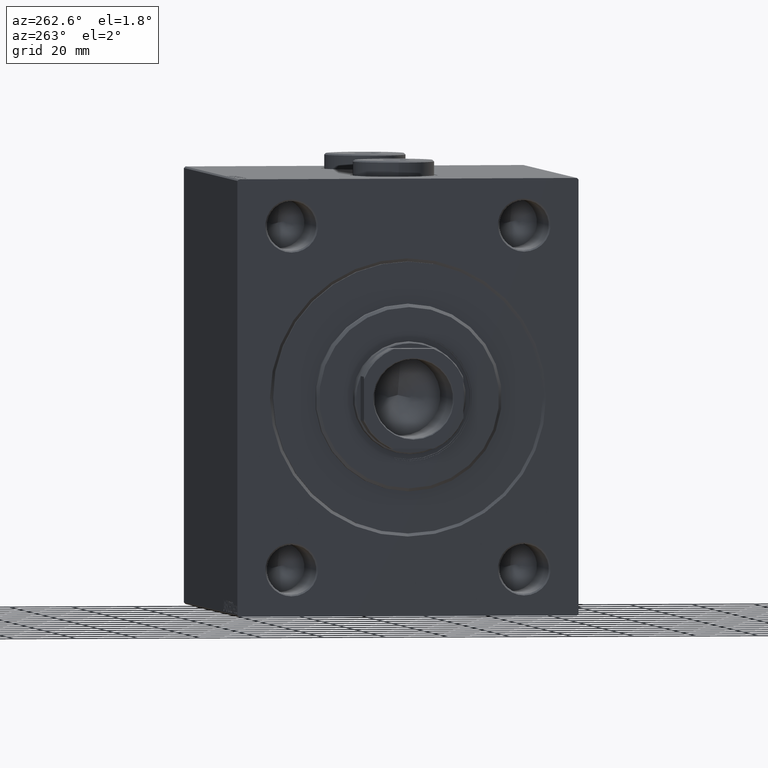
[diagram: clean part render]
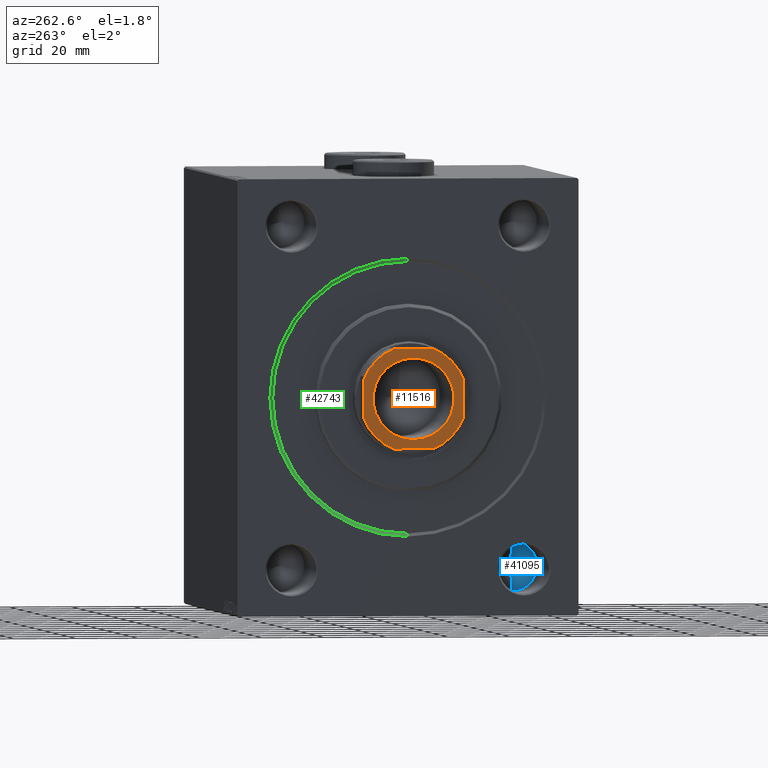
[diagram: same view with three faces highlighted in distinct colors, each labeled with its STEP entity id]
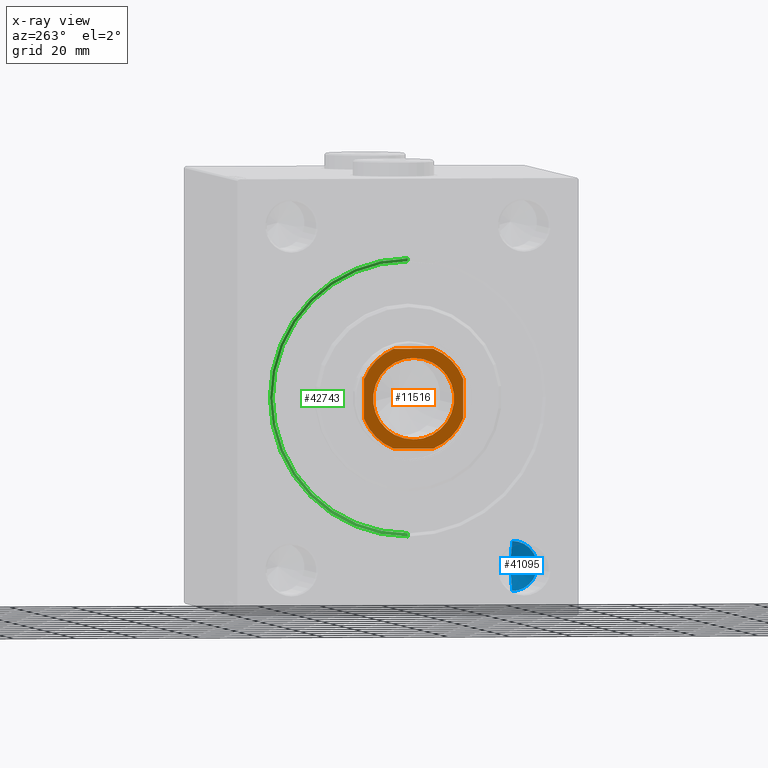
[diagram: x-ray of the same camera — body ghosted, the three highlighted faces saturated]
A machine part, auxiliary view with three faces highlighted in distinct colors.
The next image is the same camera in x-ray (body ghosted, the three faces saturated) — at least one of them is partly hidden behind the body in this view.
Their STEP definitions:

[orange] entity #11516 — the highlighted planar face has unit normal (-1, 0, 0).
#1522 = EDGE_CURVE ( 'NONE', #21636, #25241, #10453, .T. ) ;
#1797 = CARTESIAN_POINT ( 'NONE',  ( 16.00000000000000000, 6.311893535223812357, 126.0000000000000000 ) ) ;
#2664 = LINE ( 'NONE', #5918, #24057 ) ;
#3004 = AXIS2_PLACEMENT_3D ( 'NONE', #28829, #24681, #3898 ) ;
#3524 = EDGE_CURVE ( 'NONE', #15616, #40701, #21335, .T. ) ;
#3802 = ORIENTED_EDGE ( 'NONE', *, *, #1522, .T. ) ;
#3898 = DIRECTION ( 'NONE',  ( 1.000000000000000000, 0.000000000000000000, 0.000000000000000000 ) ) ;
#5735 = EDGE_CURVE ( 'NONE', #45122, #36182, #9204, .T. ) ;
#5766 = DIRECTION ( 'NONE',  ( 1.000000000000000000, 0.000000000000000000, 0.000000000000000000 ) ) ;
#5918 = CARTESIAN_POINT ( 'NONE',  ( 16.00000000000000000, 16.00000000000000000, 126.0000000000000000 ) ) ;
#6579 = DIRECTION ( 'NONE',  ( -0.000000000000000000, 0.000000000000000000, 1.000000000000000000 ) ) ;
#6672 = ORIENTED_EDGE ( 'NONE', *, *, #43998, .T. ) ;
#6988 = CARTESIAN_POINT ( 'NONE',  ( -15.99999999999999289, -16.00000000000000000, 126.0000000000000000 ) ) ;
#6997 = VERTEX_POINT ( 'NONE', #41136 ) ;
#7292 = ORIENTED_EDGE ( 'NONE', *, *, #8549, .T. ) ;
#8120 = AXIS2_PLACEMENT_3D ( 'NONE', #32468, #11657, #39840 ) ;
#8549 = EDGE_CURVE ( 'NONE', #40701, #15616, #25764, .T. ) ;
#9204 = LINE ( 'NONE', #19360, #33960 ) ;
#9492 = EDGE_CURVE ( 'NONE', #6997, #21636, #31028, .T. ) ;
#9810 = DIRECTION ( 'NONE',  ( 0.000000000000000000, -0.000000000000000000, -1.000000000000000000 ) ) ;
#9904 = EDGE_CURVE ( 'NONE', #28971, #45122, #16230, .T. ) ;
#10063 = CARTESIAN_POINT ( 'NONE',  ( 0.000000000000000000, 0.000000000000000000, 126.0000000000000000 ) ) ;
#10109 = ORIENTED_EDGE ( 'NONE', *, *, #5735, .T. ) ;
#10453 = LINE ( 'NONE', #6988, #22762 ) ;
#11276 = DIRECTION ( 'NONE',  ( 2.168404344971008868E-16, -1.000000000000000000, 0.000000000000000000 ) ) ;
#11516 = ADVANCED_FACE ( 'NONE', ( #42682, #38996 ), #28381, .T. ) ;
#11657 = DIRECTION ( 'NONE',  ( -0.000000000000000000, 0.000000000000000000, 1.000000000000000000 ) ) ;
#12230 = ORIENTED_EDGE ( 'NONE', *, *, #30624, .T. ) ;
#12466 = DIRECTION ( 'NONE',  ( -0.000000000000000000, 0.000000000000000000, 1.000000000000000000 ) ) ;
#13946 = AXIS2_PLACEMENT_3D ( 'NONE', #10063, #35226, #13964 ) ;
#13964 = DIRECTION ( 'NONE',  ( 1.000000000000000000, 0.000000000000000000, 0.000000000000000000 ) ) ;
#14882 = ORIENTED_EDGE ( 'NONE', *, *, #9492, .T. ) ;
#14890 = VECTOR ( 'NONE', #11276, 1000.000000000000000 ) ;
#15616 = VERTEX_POINT ( 'NONE', #42279 ) ;
#16230 = CIRCLE ( 'NONE', #8120, 17.20000000000000284 ) ;
#18192 = CARTESIAN_POINT ( 'NONE',  ( -16.00000000000000000, 16.00000000000000000, 126.0000000000000000 ) ) ;
#18240 = CARTESIAN_POINT ( 'NONE',  ( 6.311893535223840779, -16.00000000000000000, 126.0000000000000000 ) ) ;
#19360 = CARTESIAN_POINT ( 'NONE',  ( -16.00000000000000000, 16.00000000000000000, 126.0000000000000000 ) ) ;
#19531 = CARTESIAN_POINT ( 'NONE',  ( 0.000000000000000000, 0.000000000000000000, 126.0000000000000000 ) ) ;
#20130 = VERTEX_POINT ( 'NONE', #23274 ) ;
#20867 = CIRCLE ( 'NONE', #31961, 17.19999999999998153 ) ;
#21335 = CIRCLE ( 'NONE', #13946, 13.05000000000003446 ) ;
#21636 = VERTEX_POINT ( 'NONE', #30974 ) ;
#22762 = VECTOR ( 'NONE', #25434, 1000.000000000000000 ) ;
#23193 = EDGE_LOOP ( 'NONE', ( #6672, #43828, #10109, #29090, #12230, #14882, #3802, #26202 ) ) ;
#23274 = CARTESIAN_POINT ( 'NONE',  ( 16.00000000000000355, -6.311893535223839891, 126.0000000000000000 ) ) ;
#23458 = DIRECTION ( 'NONE',  ( -1.084202172485504434E-16, 1.000000000000000000, -0.000000000000000000 ) ) ;
#24057 = VECTOR ( 'NONE', #23458, 1000.000000000000000 ) ;
#24681 = DIRECTION ( 'NONE',  ( -0.000000000000000000, 0.000000000000000000, 1.000000000000000000 ) ) ;
#24891 = LINE ( 'NONE', #18192, #14890 ) ;
#25241 = VERTEX_POINT ( 'NONE', #18240 ) ;
#25322 = CARTESIAN_POINT ( 'NONE',  ( -6.311893535223754625, 16.00000000000000000, 126.0000000000000000 ) ) ;
#25434 = DIRECTION ( 'NONE',  ( 1.000000000000000000, 0.000000000000000000, 0.000000000000000000 ) ) ;
#25764 = CIRCLE ( 'NONE', #27284, 13.05000000000003446 ) ;
#26202 = ORIENTED_EDGE ( 'NONE', *, *, #28421, .T. ) ;
#27284 = AXIS2_PLACEMENT_3D ( 'NONE', #27356, #9810, #31066 ) ;
#27356 = CARTESIAN_POINT ( 'NONE',  ( 0.000000000000000000, 0.000000000000000000, 126.0000000000000000 ) ) ;
#28381 = PLANE ( 'NONE',  #3004 ) ;
#28421 = EDGE_CURVE ( 'NONE', #25241, #20130, #30394, .T. ) ;
#28829 = CARTESIAN_POINT ( 'NONE',  ( 0.000000000000000000, 0.000000000000000000, 126.0000000000000000 ) ) ;
#28971 = VERTEX_POINT ( 'NONE', #1797 ) ;
#29027 = CARTESIAN_POINT ( 'NONE',  ( -15.99999999999999645, 6.311893535223759955, 126.0000000000000000 ) ) ;
#29090 = ORIENTED_EDGE ( 'NONE', *, *, #32298, .T. ) ;
#29620 = AXIS2_PLACEMENT_3D ( 'NONE', #19531, #36626, #36398 ) ;
#30394 = CIRCLE ( 'NONE', #29620, 17.20000000000001350 ) ;
#30624 = EDGE_CURVE ( 'NONE', #34551, #6997, #24891, .T. ) ;
#30974 = CARTESIAN_POINT ( 'NONE',  ( -6.311893535223810581, -16.00000000000000000, 126.0000000000000000 ) ) ;
#31028 = CIRCLE ( 'NONE', #32457, 17.20000000000000284 ) ;
#31066 = DIRECTION ( 'NONE',  ( 1.000000000000000000, 0.000000000000000000, 0.000000000000000000 ) ) ;
#31961 = AXIS2_PLACEMENT_3D ( 'NONE', #42128, #6579, #35662 ) ;
#32298 = EDGE_CURVE ( 'NONE', #36182, #34551, #20867, .T. ) ;
#32457 = AXIS2_PLACEMENT_3D ( 'NONE', #44111, #12466, #5766 ) ;
#32468 = CARTESIAN_POINT ( 'NONE',  ( 0.000000000000000000, 0.000000000000000000, 126.0000000000000000 ) ) ;
#32599 = CARTESIAN_POINT ( 'NONE',  ( -13.05000000000003446, 1.598164072887299915E-15, 126.0000000000000000 ) ) ;
#33960 = VECTOR ( 'NONE', #44536, 1000.000000000000000 ) ;
#34551 = VERTEX_POINT ( 'NONE', #29027 ) ;
#35226 = DIRECTION ( 'NONE',  ( 0.000000000000000000, -0.000000000000000000, -1.000000000000000000 ) ) ;
#35662 = DIRECTION ( 'NONE',  ( 1.000000000000000000, 0.000000000000000000, 0.000000000000000000 ) ) ;
#35905 = EDGE_LOOP ( 'NONE', ( #37961, #7292 ) ) ;
#36182 = VERTEX_POINT ( 'NONE', #25322 ) ;
#36398 = DIRECTION ( 'NONE',  ( 1.000000000000000000, 0.000000000000000000, 0.000000000000000000 ) ) ;
#36626 = DIRECTION ( 'NONE',  ( -0.000000000000000000, 0.000000000000000000, 1.000000000000000000 ) ) ;
#37961 = ORIENTED_EDGE ( 'NONE', *, *, #3524, .T. ) ;
#38996 = FACE_OUTER_BOUND ( 'NONE', #23193, .T. ) ;
#39840 = DIRECTION ( 'NONE',  ( 1.000000000000000000, 0.000000000000000000, 0.000000000000000000 ) ) ;
#40701 = VERTEX_POINT ( 'NONE', #32599 ) ;
#41136 = CARTESIAN_POINT ( 'NONE',  ( -15.99999999999999645, -6.311893535223822127, 126.0000000000000000 ) ) ;
#42128 = CARTESIAN_POINT ( 'NONE',  ( 0.000000000000000000, 0.000000000000000000, 126.0000000000000000 ) ) ;
#42279 = CARTESIAN_POINT ( 'NONE',  ( 13.05000000000003446, 0.000000000000000000, 126.0000000000000000 ) ) ;
#42682 = FACE_BOUND ( 'NONE', #35905, .T. ) ;
#43828 = ORIENTED_EDGE ( 'NONE', *, *, #9904, .T. ) ;
#43998 = EDGE_CURVE ( 'NONE', #20130, #28971, #2664, .T. ) ;
#44111 = CARTESIAN_POINT ( 'NONE',  ( 0.000000000000000000, 0.000000000000000000, 126.0000000000000000 ) ) ;
#44284 = CARTESIAN_POINT ( 'NONE',  ( 6.311893535223808804, 16.00000000000000000, 126.0000000000000000 ) ) ;
#44536 = DIRECTION ( 'NONE',  ( -1.000000000000000000, -0.000000000000000000, -0.000000000000000000 ) ) ;
#45122 = VERTEX_POINT ( 'NONE', #44284 ) ;

[blue] entity #41095 — the highlighted conical surface has half-angle 59 deg.
#122 = LINE ( 'NONE', #41944, #5232 ) ;
#5232 = VECTOR ( 'NONE', #24391, 1000.000000000000000 ) ;
#6698 = CARTESIAN_POINT ( 'NONE',  ( 30.00000000000000000, -37.49999999999999289, -62.99999999999998579 ) ) ;
#6941 = CARTESIAN_POINT ( 'NONE',  ( 30.00000000000000000, -37.49999999999999289, -47.00000000000000000 ) ) ;
#7554 = EDGE_LOOP ( 'NONE', ( #43507, #22555, #12050 ) ) ;
#10284 = DIRECTION ( 'NONE',  ( 0.000000000000000000, 0.000000000000000000, 1.000000000000000000 ) ) ;
#10670 = EDGE_CURVE ( 'NONE', #30871, #22240, #122, .T. ) ;
#11058 = DIRECTION ( 'NONE',  ( -0.5150380749100550437, 1.049727191138617956E-16, -0.8571673007021117785 ) ) ;
#12050 = ORIENTED_EDGE ( 'NONE', *, *, #34667, .T. ) ;
#12426 = DIRECTION ( 'NONE',  ( 0.000000000000000000, 0.000000000000000000, 1.000000000000000000 ) ) ;
#13326 = CARTESIAN_POINT ( 'NONE',  ( 30.00000000000000000, -37.49999999999999289, -54.99999999999999289 ) ) ;
#15082 = CONICAL_SURFACE ( 'NONE', #23211, 7.999999999999992895, 1.029744258676653423 ) ;
#16749 = DIRECTION ( 'NONE',  ( -1.000000000000000000, -0.000000000000000000, -0.000000000000000000 ) ) ;
#18436 = EDGE_CURVE ( 'NONE', #30871, #40809, #31872, .T. ) ;
#22240 = VERTEX_POINT ( 'NONE', #6941 ) ;
#22555 = ORIENTED_EDGE ( 'NONE', *, *, #18436, .T. ) ;
#23211 = AXIS2_PLACEMENT_3D ( 'NONE', #13326, #34377, #12426 ) ;
#23462 = CARTESIAN_POINT ( 'NONE',  ( 30.00000000000000000, -37.49999999999999289, -54.99999999999999289 ) ) ;
#24391 = DIRECTION ( 'NONE',  ( -0.5150380749100550437, 0.000000000000000000, 0.8571673007021117785 ) ) ;
#27256 = CARTESIAN_POINT ( 'NONE',  ( 30.00000000000000000, -37.49999999999999289, -62.99999999999998579 ) ) ;
#30188 = VECTOR ( 'NONE', #11058, 1000.000000000000000 ) ;
#30871 = VERTEX_POINT ( 'NONE', #33679 ) ;
#31872 = LINE ( 'NONE', #6698, #30188 ) ;
#33679 = CARTESIAN_POINT ( 'NONE',  ( 34.80688495222048573, -37.50000000000000000, -54.99999999999999289 ) ) ;
#34377 = DIRECTION ( 'NONE',  ( -1.000000000000000000, -0.000000000000000000, -0.000000000000000000 ) ) ;
#34667 = EDGE_CURVE ( 'NONE', #40809, #22240, #38537, .T. ) ;
#35567 = AXIS2_PLACEMENT_3D ( 'NONE', #23462, #16749, #10284 ) ;
#38537 = CIRCLE ( 'NONE', #35567, 7.999999999999992895 ) ;
#40809 = VERTEX_POINT ( 'NONE', #27256 ) ;
#41095 = ADVANCED_FACE ( 'NONE', ( #44541 ), #15082, .F. ) ;
#41944 = CARTESIAN_POINT ( 'NONE',  ( 30.00000000000000000, -37.49999999999999289, -47.00000000000000000 ) ) ;
#43507 = ORIENTED_EDGE ( 'NONE', *, *, #10670, .F. ) ;
#44541 = FACE_OUTER_BOUND ( 'NONE', #7554, .T. ) ;

[green] entity #42743 — the highlighted conical surface has half-angle 45 deg.
#1428 = EDGE_CURVE ( 'NONE', #21777, #7170, #35387, .T. ) ;
#2101 = CARTESIAN_POINT ( 'NONE',  ( 1.000000000000028644, 0.000000000000000000, 0.000000000000000000 ) ) ;
#3081 = EDGE_LOOP ( 'NONE', ( #41164, #40645, #43809, #32271 ) ) ;
#3217 = DIRECTION ( 'NONE',  ( 0.000000000000000000, 0.000000000000000000, -1.000000000000000000 ) ) ;
#4071 = AXIS2_PLACEMENT_3D ( 'NONE', #37329, #16060, #23684 ) ;
#4695 = EDGE_CURVE ( 'NONE', #20515, #23980, #26795, .T. ) ;
#7170 = VERTEX_POINT ( 'NONE', #25161 ) ;
#9871 = CIRCLE ( 'NONE', #41574, 43.50000000000000000 ) ;
#12548 = VECTOR ( 'NONE', #40420, 1000.000000000000000 ) ;
#13670 = CONICAL_SURFACE ( 'NONE', #4071, 43.50000000000000000, 0.7853981633974415066 ) ;
#14674 = EDGE_CURVE ( 'NONE', #20515, #21777, #9871, .T. ) ;
#16060 = DIRECTION ( 'NONE',  ( -1.000000000000000000, 0.000000000000000000, 0.000000000000000000 ) ) ;
#17489 = EDGE_CURVE ( 'NONE', #7170, #23980, #22051, .T. ) ;
#20515 = VERTEX_POINT ( 'NONE', #33583 ) ;
#21777 = VERTEX_POINT ( 'NONE', #45722 ) ;
#22051 = CIRCLE ( 'NONE', #33115, 44.50000000000001421 ) ;
#23448 = FACE_OUTER_BOUND ( 'NONE', #3081, .T. ) ;
#23684 = DIRECTION ( 'NONE',  ( 0.000000000000000000, 0.000000000000000000, 1.000000000000000000 ) ) ;
#23980 = VERTEX_POINT ( 'NONE', #24274 ) ;
#24274 = CARTESIAN_POINT ( 'NONE',  ( 0.000000000000000000, 0.000000000000000000, 44.50000000000001421 ) ) ;
#25161 = CARTESIAN_POINT ( 'NONE',  ( 0.000000000000000000, 5.449678256205723559E-15, -44.50000000000001421 ) ) ;
#26795 = LINE ( 'NONE', #40884, #12548 ) ;
#29005 = CARTESIAN_POINT ( 'NONE',  ( 0.000000000000000000, 0.000000000000000000, 0.000000000000000000 ) ) ;
#31938 = DIRECTION ( 'NONE',  ( -0.7071067811865524577, 8.659560562354874926E-17, -0.7071067811865426878 ) ) ;
#32271 = ORIENTED_EDGE ( 'NONE', *, *, #17489, .F. ) ;
#33115 = AXIS2_PLACEMENT_3D ( 'NONE', #29005, #43310, #3217 ) ;
#33583 = CARTESIAN_POINT ( 'NONE',  ( 1.000000000000028644, 0.000000000000000000, 43.50000000000000000 ) ) ;
#34234 = DIRECTION ( 'NONE',  ( -1.000000000000000000, 0.000000000000000000, 0.000000000000000000 ) ) ;
#35387 = LINE ( 'NONE', #38630, #45602 ) ;
#37329 = CARTESIAN_POINT ( 'NONE',  ( 1.000000000000028644, 0.000000000000000000, 0.000000000000000000 ) ) ;
#37914 = DIRECTION ( 'NONE',  ( 0.000000000000000000, 0.000000000000000000, -1.000000000000000000 ) ) ;
#38630 = CARTESIAN_POINT ( 'NONE',  ( 1.000000000000028644, 5.327213576290986044E-15, -43.50000000000000000 ) ) ;
#40420 = DIRECTION ( 'NONE',  ( -0.7071067811865524577, 0.000000000000000000, 0.7071067811865426878 ) ) ;
#40645 = ORIENTED_EDGE ( 'NONE', *, *, #14674, .F. ) ;
#40884 = CARTESIAN_POINT ( 'NONE',  ( 1.000000000000028644, 0.000000000000000000, 43.50000000000000000 ) ) ;
#41164 = ORIENTED_EDGE ( 'NONE', *, *, #1428, .F. ) ;
#41574 = AXIS2_PLACEMENT_3D ( 'NONE', #2101, #34234, #37914 ) ;
#42743 = ADVANCED_FACE ( 'NONE', ( #23448 ), #13670, .F. ) ;
#43310 = DIRECTION ( 'NONE',  ( 1.000000000000000000, 0.000000000000000000, 0.000000000000000000 ) ) ;
#43809 = ORIENTED_EDGE ( 'NONE', *, *, #4695, .T. ) ;
#45602 = VECTOR ( 'NONE', #31938, 1000.000000000000000 ) ;
#45722 = CARTESIAN_POINT ( 'NONE',  ( 1.000000000000028644, 5.327213576290986044E-15, -43.50000000000000000 ) ) ;